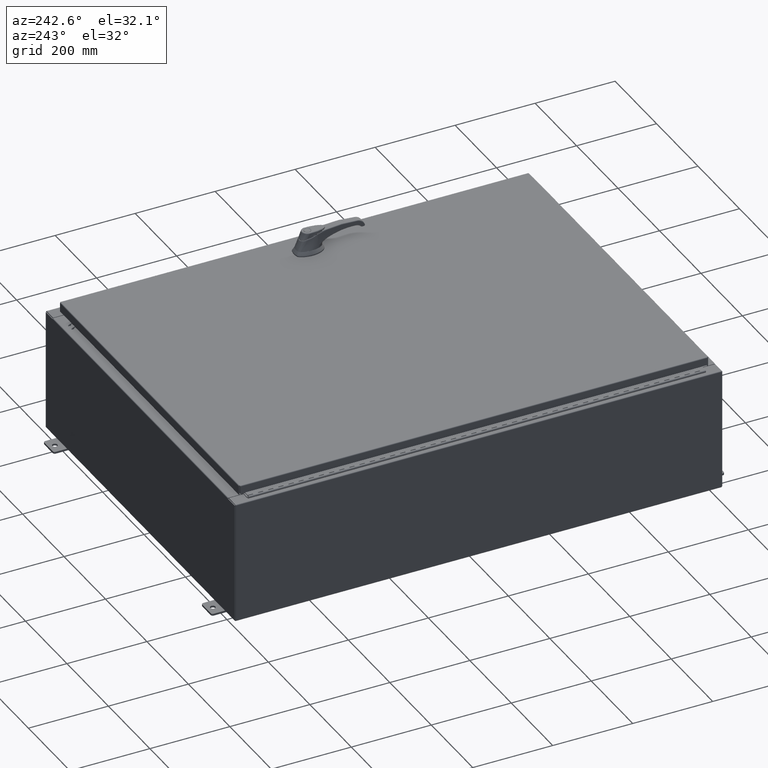
[diagram: clean part render]
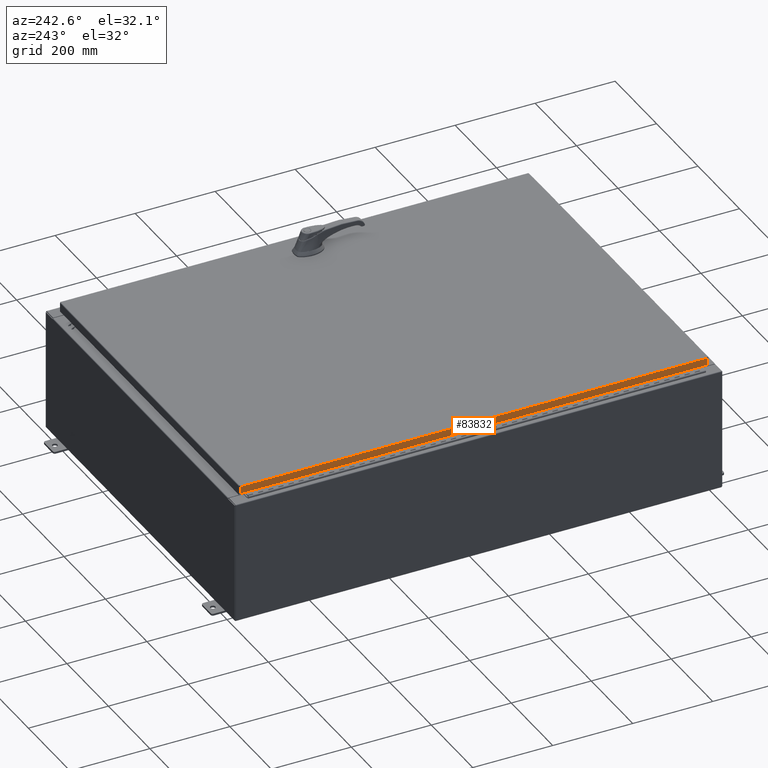
[diagram: same view with one face highlighted and labeled with its STEP entity id]
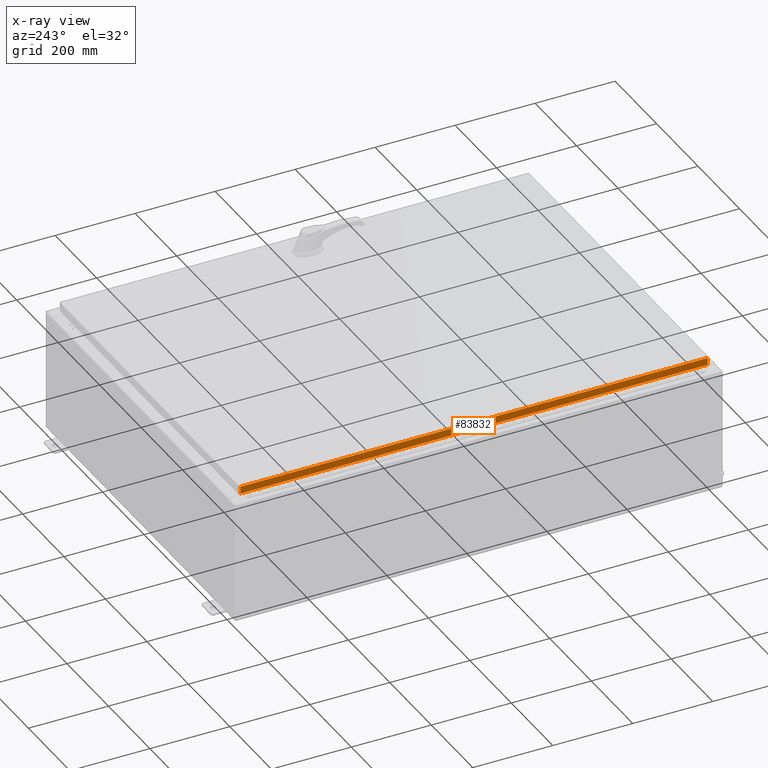
[diagram: x-ray of the same camera — body ghosted, the highlighted face saturated]
A machine part, auxiliary view. The second image highlights one B-rep face of the part: STEP entity #83832.
The next image is the same camera in x-ray: the body ghosted, the highlighted face saturated — about 0% of this face is hidden behind the body in this view.
In plain terms, the highlighted planar face has unit normal (1, -0, -0).
Its self-contained STEP definition (entity closure, byte-faithful):
#997 = VECTOR ( 'NONE', #17281, 39.37007874015748100 ) ;
#1464 = CARTESIAN_POINT ( 'NONE',  ( -17.07799999999999600, 23.00515786437627200, -0.08770000000000659200 ) ) ;
#1943 = PLANE ( 'NONE',  #54324 ) ;
#6953 = CARTESIAN_POINT ( 'NONE',  ( -17.07799999999999900, -23.00515786437627200, -0.07469999999999976700 ) ) ;
#12854 = ORIENTED_EDGE ( 'NONE', *, *, #125341, .F. ) ;
#13648 = EDGE_LOOP ( 'NONE', ( #56256, #125662, #98706, #12854 ) ) ;
#16325 = VECTOR ( 'NONE', #22570, 39.37007874015748100 ) ;
#17281 = DIRECTION ( 'NONE',  ( -3.034122441942816100E-015, 6.982962677686267500E-015, -1.000000000000000000 ) ) ;
#21563 = VERTEX_POINT ( 'NONE', #31078 ) ;
#22570 = DIRECTION ( 'NONE',  ( -9.463403459476019000E-017, -1.000000000000000000, 1.419510518921414800E-016 ) ) ;
#25491 = CARTESIAN_POINT ( 'NONE',  ( -17.07800000000000300, -23.09400000000000100, -0.7949999999999997100 ) ) ;
#26772 = EDGE_CURVE ( 'NONE', #69128, #113251, #127259, .T. ) ;
#31078 = CARTESIAN_POINT ( 'NONE',  ( -17.07799999999999900, -23.00515786437626900, -0.08770000000000334500 ) ) ;
#32913 = CARTESIAN_POINT ( 'NONE',  ( -17.07799999999999600, 1.616160042809321200E-015, 5.207755671951099000E-014 ) ) ;
#40997 = EDGE_CURVE ( 'NONE', #129736, #113251, #82117, .T. ) ;
#43192 = DIRECTION ( 'NONE',  ( -3.034122441942816500E-015, 0.0000000000000000000, -1.000000000000000000 ) ) ;
#54324 = AXIS2_PLACEMENT_3D ( 'NONE', #32913, #104519, #43192 ) ;
#54783 = CARTESIAN_POINT ( 'NONE',  ( -17.07799999999999600, 23.00515786437627600, -0.7949999999999941600 ) ) ;
#55513 = LINE ( 'NONE', #6953, #997 ) ;
#56256 = ORIENTED_EDGE ( 'NONE', *, *, #113134, .F. ) ;
#57077 = DIRECTION ( 'NONE',  ( -3.034122441942816100E-015, 6.982962677686267500E-015, -1.000000000000000000 ) ) ;
#69128 = VERTEX_POINT ( 'NONE', #98113 ) ;
#70825 = LINE ( 'NONE', #114845, #16325 ) ;
#72773 = VECTOR ( 'NONE', #97155, 39.37007874015748100 ) ;
#82117 = LINE ( 'NONE', #108109, #109309 ) ;
#83832 = ADVANCED_FACE ( 'NONE', ( #129960 ), #1943, .F. ) ;
#97155 = DIRECTION ( 'NONE',  ( 9.463403459476099200E-017, 1.000000000000000000, 1.212498568245375300E-016 ) ) ;
#98113 = CARTESIAN_POINT ( 'NONE',  ( -17.07800000000000300, -23.00515786437626900, -0.7949999999999996000 ) ) ;
#98706 = ORIENTED_EDGE ( 'NONE', *, *, #26772, .F. ) ;
#104519 = DIRECTION ( 'NONE',  ( 1.000000000000000000, -9.463403459476060900E-017, -3.034122441942816500E-015 ) ) ;
#108109 = CARTESIAN_POINT ( 'NONE',  ( -17.07799999999999600, 23.00515786437627200, 2.127217154807312100E-013 ) ) ;
#109309 = VECTOR ( 'NONE', #57077, 39.37007874015748100 ) ;
#113134 = EDGE_CURVE ( 'NONE', #129736, #21563, #70825, .T. ) ;
#113251 = VERTEX_POINT ( 'NONE', #54783 ) ;
#114845 = CARTESIAN_POINT ( 'NONE',  ( -17.07799999999999900, -23.09400000000000100, -0.08770000000000004200 ) ) ;
#125341 = EDGE_CURVE ( 'NONE', #21563, #69128, #55513, .T. ) ;
#125662 = ORIENTED_EDGE ( 'NONE', *, *, #40997, .T. ) ;
#127259 = LINE ( 'NONE', #25491, #72773 ) ;
#129736 = VERTEX_POINT ( 'NONE', #1464 ) ;
#129960 = FACE_OUTER_BOUND ( 'NONE', #13648, .T. ) ;